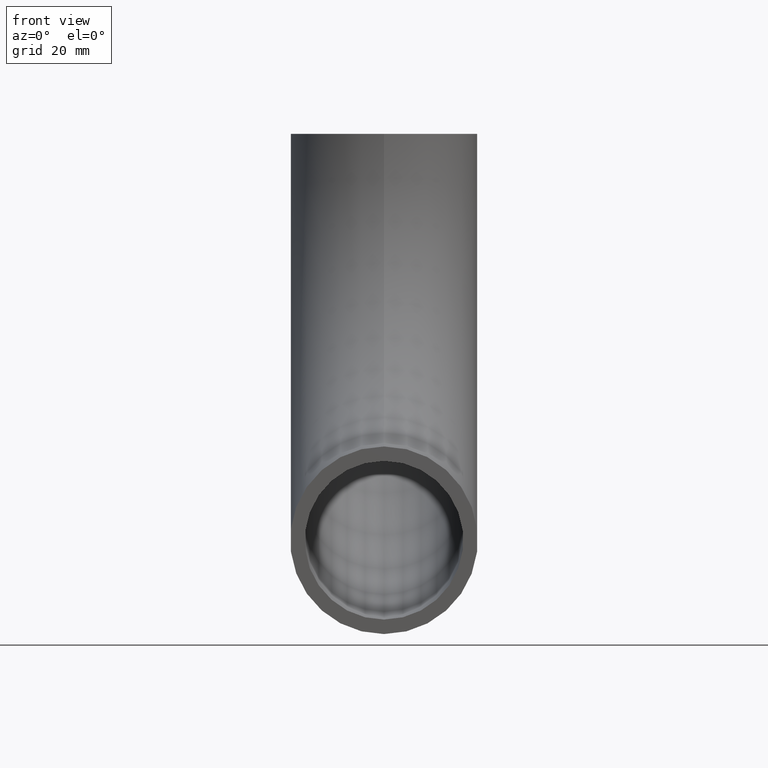
[diagram: clean part render]
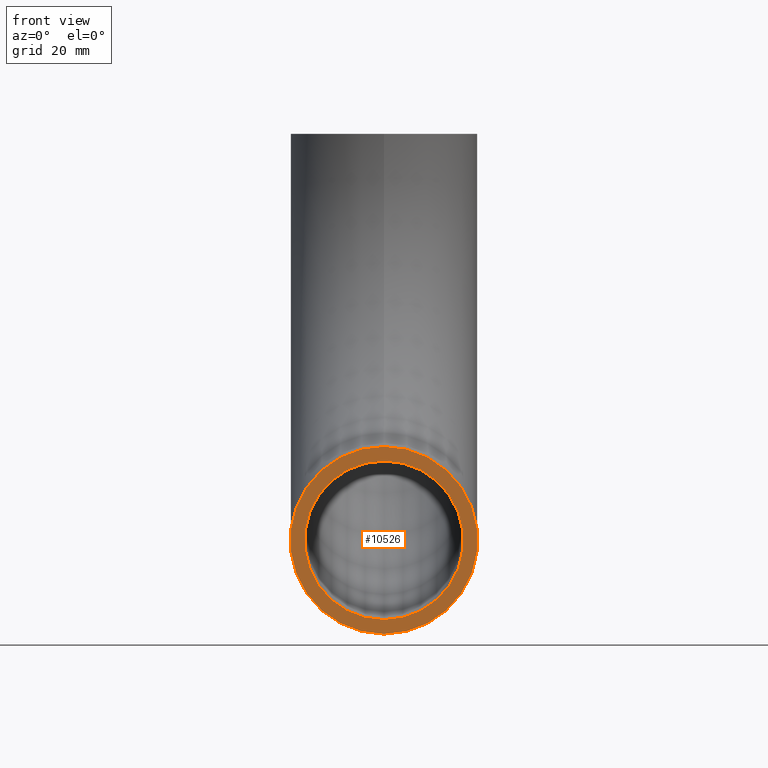
[diagram: same view with one face highlighted and labeled with its STEP entity id]
A machine part, front view. The second image highlights one B-rep face of the part: STEP entity #10526.
In plain terms, the highlighted planar face has unit normal (0, 1, 0).
Its self-contained STEP definition (entity closure, byte-faithful):
#787 = CIRCLE ( 'NONE', #3352, 16.85000000000000497 ) ;
#1192 = DIRECTION ( 'NONE',  ( 0.000000000000000000, 0.000000000000000000, 1.000000000000000000 ) ) ;
#1644 = CARTESIAN_POINT ( 'NONE',  ( 0.000000000000000000, 0.000000000000000000, -56.14999999999999147 ) ) ;
#3149 = EDGE_LOOP ( 'NONE', ( #8623 ) ) ;
#3262 = VERTEX_POINT ( 'NONE', #1644 ) ;
#3352 = AXIS2_PLACEMENT_3D ( 'NONE', #3808, #5564, #1192 ) ;
#3490 = FACE_BOUND ( 'NONE', #3149, .T. ) ;
#3808 = CARTESIAN_POINT ( 'NONE',  ( 0.000000000000000000, 0.000000000000000000, -73.00000000000000000 ) ) ;
#4594 = VERTEX_POINT ( 'NONE', #7625 ) ;
#5564 = DIRECTION ( 'NONE',  ( 0.000000000000000000, 1.000000000000000000, 0.000000000000000000 ) ) ;
#6224 = CARTESIAN_POINT ( 'NONE',  ( 0.000000000000000000, 0.000000000000000000, -73.00000000000000000 ) ) ;
#6303 = EDGE_CURVE ( 'NONE', #4594, #4594, #8986, .T. ) ;
#6741 = AXIS2_PLACEMENT_3D ( 'NONE', #6224, #8772, #7923 ) ;
#7191 = CARTESIAN_POINT ( 'NONE',  ( 0.000000000000000000, 0.000000000000000000, -73.00000000000000000 ) ) ;
#7352 = EDGE_CURVE ( 'NONE', #3262, #3262, #787, .T. ) ;
#7625 = CARTESIAN_POINT ( 'NONE',  ( 0.000000000000000000, 0.000000000000000000, -58.75000000000000000 ) ) ;
#7923 = DIRECTION ( 'NONE',  ( 0.000000000000000000, -0.000000000000000000, 1.000000000000000000 ) ) ;
#8059 = DIRECTION ( 'NONE',  ( 0.000000000000000000, 1.000000000000000000, 0.000000000000000000 ) ) ;
#8623 = ORIENTED_EDGE ( 'NONE', *, *, #6303, .T. ) ;
#8746 = AXIS2_PLACEMENT_3D ( 'NONE', #7191, #8059, #9773 ) ;
#8772 = DIRECTION ( 'NONE',  ( 0.000000000000000000, 1.000000000000000000, 0.000000000000000000 ) ) ;
#8804 = PLANE ( 'NONE',  #6741 ) ;
#8986 = CIRCLE ( 'NONE', #8746, 14.24999999999999822 ) ;
#9098 = EDGE_LOOP ( 'NONE', ( #9692 ) ) ;
#9692 = ORIENTED_EDGE ( 'NONE', *, *, #7352, .F. ) ;
#9773 = DIRECTION ( 'NONE',  ( 0.000000000000000000, 0.000000000000000000, 1.000000000000000000 ) ) ;
#9785 = FACE_OUTER_BOUND ( 'NONE', #9098, .T. ) ;
#10526 = ADVANCED_FACE ( 'NONE', ( #3490, #9785 ), #8804, .F. ) ;